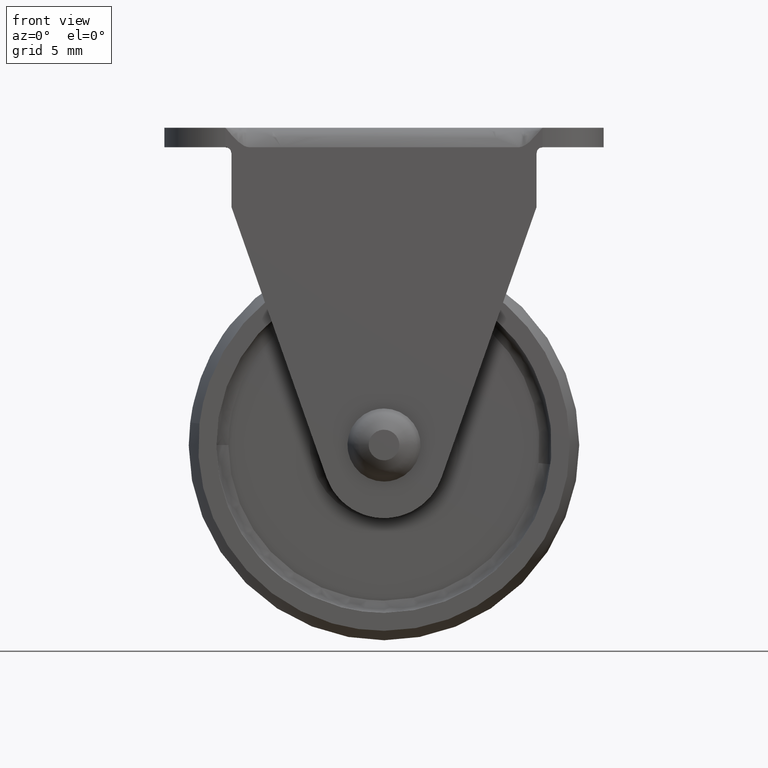
[diagram: clean part render]
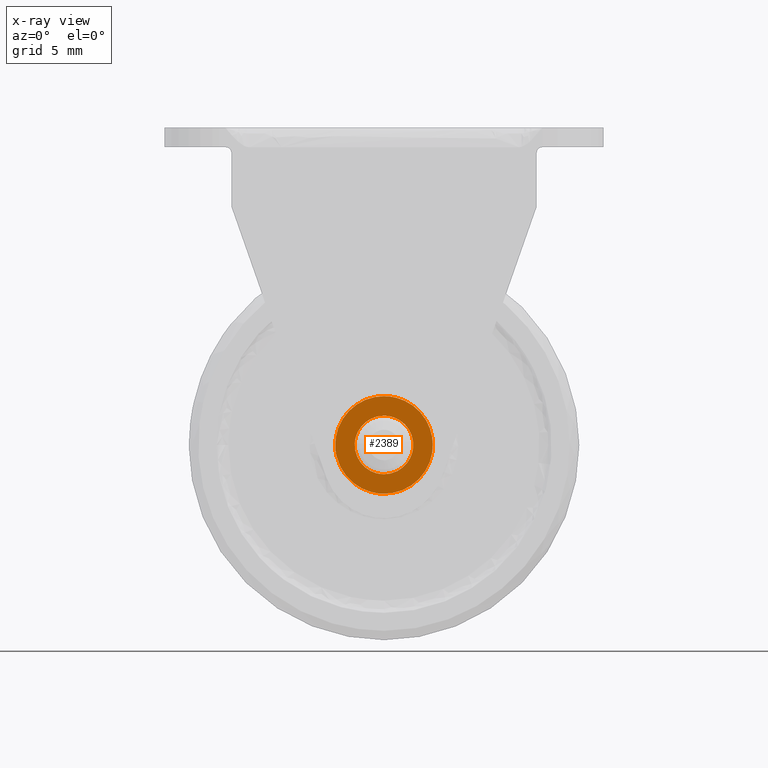
[diagram: x-ray — body ghosted, one internal face saturated and labeled with its STEP entity id]
A machine part, front view, then the same camera in x-ray: the body is ghosted and one INTERNAL B-rep face — a face not visible from any outside direction — is saturated and labeled: STEP entity #2389.
In plain terms, the highlighted face is a freeform B-spline surface patch.
Its self-contained STEP definition (entity closure, byte-faithful):
#999=CARTESIAN_POINT('',(2.383224849282562,-8.0,-0.283282399323816));
#1000=VERTEX_POINT('',#999);
#1006=CARTESIAN_POINT('',(0.0,-8.0,2.400002000000116));
#1007=VERTEX_POINT('',#1006);
#1008=CARTESIAN_POINT('',(2.383224849282562,-8.0,-0.283282399323816));
#1009=CARTESIAN_POINT('',(2.400002000000115,-8.0,-0.142138005692780));
#1010=CARTESIAN_POINT('',(2.400002000000115,-8.0,8.173480E-016));
#1011=CARTESIAN_POINT('',(2.400002000000114,-8.0,2.400002000000116));
#1012=CARTESIAN_POINT('',(0.0,-8.0,2.400002000000116));
#1020=(BOUNDED_CURVE()B_SPLINE_CURVE(2,(#1008,#1009,#1010,#1011,#1012),.UNSPECIFIED.,.F.,.U.)B_SPLINE_CURVE_WITH_KNOTS((3,2,3),(0.229562473504424,0.250000000000000,0.500000000000000),.UNSPECIFIED.)CURVE()GEOMETRIC_REPRESENTATION_ITEM()RATIONAL_B_SPLINE_CURVE((0.956026754165893,0.976055948320502,1.0,0.707106781186547,1.0))REPRESENTATION_ITEM(''));
#1021=EDGE_CURVE('',#1000,#1007,#1020,.T.);
#1023=CARTESIAN_POINT('',(-2.395525512481280,-8.0,0.146516616995651));
#1024=VERTEX_POINT('',#1023);
#1025=CARTESIAN_POINT('',(0.0,-8.0,2.400002000000116));
#1026=CARTESIAN_POINT('',(-2.257696441957746,-8.0,2.400002000000116));
#1027=CARTESIAN_POINT('',(-2.395525512481280,-8.0,0.146516616995652));
#1035=(BOUNDED_CURVE()B_SPLINE_CURVE(2,(#1025,#1026,#1027),.UNSPECIFIED.,.F.,.U.)B_SPLINE_CURVE_WITH_KNOTS((3,3),(0.500000000000000,0.739332962239820),.UNSPECIFIED.)CURVE()GEOMETRIC_REPRESENTATION_ITEM()RATIONAL_B_SPLINE_CURVE((1.0,0.719603993285683,0.976072041668597))REPRESENTATION_ITEM(''));
#1036=EDGE_CURVE('',#1007,#1024,#1035,.T.);
#1110=CARTESIAN_POINT('',(0.0,-8.0,-2.400002000000114));
#1111=VERTEX_POINT('',#1110);
#1112=CARTESIAN_POINT('',(-2.395525512481280,-8.000000000000002,0.146516616995651));
#1113=CARTESIAN_POINT('',(-2.400002000000115,-8.0,0.073326693037094));
#1114=CARTESIAN_POINT('',(-2.400002000000115,-8.0,8.173480E-016));
#1115=CARTESIAN_POINT('',(-2.400002000000114,-8.0,-2.400002000000114));
#1116=CARTESIAN_POINT('',(0.0,-8.0,-2.400002000000114));
#1124=(BOUNDED_CURVE()B_SPLINE_CURVE(2,(#1112,#1113,#1114,#1115,#1116),.UNSPECIFIED.,.F.,.U.)B_SPLINE_CURVE_WITH_KNOTS((3,2,3),(0.739332962239821,0.750000000000000,1.0),.UNSPECIFIED.)CURVE()GEOMETRIC_REPRESENTATION_ITEM()RATIONAL_B_SPLINE_CURVE((0.976072041668599,0.987502787900866,1.0,0.707106781186547,1.0))REPRESENTATION_ITEM(''));
#1125=EDGE_CURVE('',#1024,#1111,#1124,.T.);
#1127=CARTESIAN_POINT('',(0.0,-8.0,-2.400002000000114));
#1128=CARTESIAN_POINT('',(2.131620638489917,-8.0,-2.400002000000113));
#1129=CARTESIAN_POINT('',(2.383224849282562,-8.0,-0.283282399323816));
#1137=(BOUNDED_CURVE()B_SPLINE_CURVE(2,(#1127,#1128,#1129),.UNSPECIFIED.,.F.,.U.)B_SPLINE_CURVE_WITH_KNOTS((3,3),(0.0,0.229562473504424),.UNSPECIFIED.)CURVE()GEOMETRIC_REPRESENTATION_ITEM()RATIONAL_B_SPLINE_CURVE((1.0,0.731050832866046,0.956026754165893))REPRESENTATION_ITEM(''));
#1138=EDGE_CURVE('',#1111,#1000,#1137,.T.);
#1170=CARTESIAN_POINT('',(3.946743520789501,-7.999999999999979,0.650548618797971));
#1171=VERTEX_POINT('',#1170);
#1185=CARTESIAN_POINT('',(0.0,-8.0,-3.999999738200614));
#1186=VERTEX_POINT('',#1185);
#1187=CARTESIAN_POINT('',(0.0,-8.0,-3.999999738200614));
#1188=CARTESIAN_POINT('',(3.999999738200616,-8.0,-3.999999738200614));
#1189=CARTESIAN_POINT('',(3.999999738200615,-8.0,8.173480E-016));
#1190=CARTESIAN_POINT('',(3.999999738200615,-8.0,0.327454180937115));
#1191=CARTESIAN_POINT('',(3.946743520789501,-7.999999999999979,0.650548618797971));
#1199=(BOUNDED_CURVE()B_SPLINE_CURVE(2,(#1187,#1188,#1189,#1190,#1191),.UNSPECIFIED.,.F.,.U.)B_SPLINE_CURVE_WITH_KNOTS((3,2,3),(0.0,0.250000000000000,0.277993891218767),.UNSPECIFIED.)CURVE()GEOMETRIC_REPRESENTATION_ITEM()RATIONAL_B_SPLINE_CURVE((1.0,0.707106781186547,1.0,0.967203116375286,0.941751131890611))REPRESENTATION_ITEM(''));
#1200=EDGE_CURVE('',#1186,#1171,#1199,.T.);
#1202=CARTESIAN_POINT('',(-3.903077048846757,-7.999999999999979,-0.875207111426854));
#1203=VERTEX_POINT('',#1202);
#1204=CARTESIAN_POINT('',(-3.903077048846757,-7.999999999999979,-0.875207111426854));
#1205=CARTESIAN_POINT('',(-3.202388665975705,-8.0,-3.999999738200615));
#1206=CARTESIAN_POINT('',(0.0,-8.0,-3.999999738200614));
#1214=(BOUNDED_CURVE()B_SPLINE_CURVE(2,(#1204,#1205,#1206),.UNSPECIFIED.,.F.,.U.)B_SPLINE_CURVE_WITH_KNOTS((3,3),(0.787436176751756,1.0),.UNSPECIFIED.)CURVE()GEOMETRIC_REPRESENTATION_ITEM()RATIONAL_B_SPLINE_CURVE((0.925416950401950,0.750965990422112,1.0))REPRESENTATION_ITEM(''));
#1215=EDGE_CURVE('',#1203,#1186,#1214,.T.);
#1265=CARTESIAN_POINT('',(0.0,-8.0,3.999999738200616));
#1266=VERTEX_POINT('',#1265);
#1267=CARTESIAN_POINT('',(0.0,-8.0,3.999999738200616));
#1268=CARTESIAN_POINT('',(-3.999999738200616,-8.0,3.999999738200616));
#1269=CARTESIAN_POINT('',(-3.999999738200615,-8.0,8.173480E-016));
#1270=CARTESIAN_POINT('',(-3.999999738200616,-8.0,-0.442970289999301));
#1271=CARTESIAN_POINT('',(-3.903077048846757,-7.999999999999979,-0.875207111426854));
#1279=(BOUNDED_CURVE()B_SPLINE_CURVE(2,(#1267,#1268,#1269,#1270,#1271),.UNSPECIFIED.,.F.,.U.)B_SPLINE_CURVE_WITH_KNOTS((3,2,3),(0.500000000000000,0.750000000000000,0.787436176751756),.UNSPECIFIED.)CURVE()GEOMETRIC_REPRESENTATION_ITEM()RATIONAL_B_SPLINE_CURVE((1.0,0.707106781186547,1.0,0.956140790764435,0.925416950401949))REPRESENTATION_ITEM(''));
#1280=EDGE_CURVE('',#1266,#1203,#1279,.T.);
#1282=CARTESIAN_POINT('',(3.946743520789501,-7.999999999999979,0.650548618797971));
#1283=CARTESIAN_POINT('',(3.394647647804632,-8.0,3.999999738200617));
#1284=CARTESIAN_POINT('',(0.0,-8.0,3.999999738200616));
#1292=(BOUNDED_CURVE()B_SPLINE_CURVE(2,(#1282,#1283,#1284),.UNSPECIFIED.,.F.,.U.)B_SPLINE_CURVE_WITH_KNOTS((3,3),(0.277993891218768,0.500000000000000),.UNSPECIFIED.)CURVE()GEOMETRIC_REPRESENTATION_ITEM()RATIONAL_B_SPLINE_CURVE((0.941751131890611,0.739903664811261,1.0))REPRESENTATION_ITEM(''));
#1293=EDGE_CURVE('',#1171,#1266,#1292,.T.);
#2372=CARTESIAN_POINT('',(-4.398889769800929,-8.0,-4.399599771639576));
#2373=CARTESIAN_POINT('',(-4.398889769800929,-8.0,4.399599914690716));
#2374=CARTESIAN_POINT('',(4.399354671731302,-8.0,-4.399599771639576));
#2375=CARTESIAN_POINT('',(4.399354671731302,-8.0,4.399599914690716));
#2376=B_SPLINE_SURFACE_WITH_KNOTS('',1,1,((#2372,#2374),(#2373,#2375)),.UNSPECIFIED.,.F.,.F.,.U.,(2,2),(2,2),(0.0,8.799199686330292),(0.0,8.798244441532232),.UNSPECIFIED.);
#2377=ORIENTED_EDGE('',*,*,#1200,.T.);
#2378=ORIENTED_EDGE('',*,*,#1293,.T.);
#2379=ORIENTED_EDGE('',*,*,#1280,.T.);
#2380=ORIENTED_EDGE('',*,*,#1215,.T.);
#2381=EDGE_LOOP('',(#2377,#2378,#2379,#2380));
#2382=FACE_OUTER_BOUND('',#2381,.T.);
#2383=ORIENTED_EDGE('',*,*,#1036,.F.);
#2384=ORIENTED_EDGE('',*,*,#1021,.F.);
#2385=ORIENTED_EDGE('',*,*,#1138,.F.);
#2386=ORIENTED_EDGE('',*,*,#1125,.F.);
#2387=EDGE_LOOP('',(#2383,#2384,#2385,#2386));
#2388=FACE_BOUND('',#2387,.T.);
#2389=ADVANCED_FACE('',(#2382,#2388),#2376,.F.);